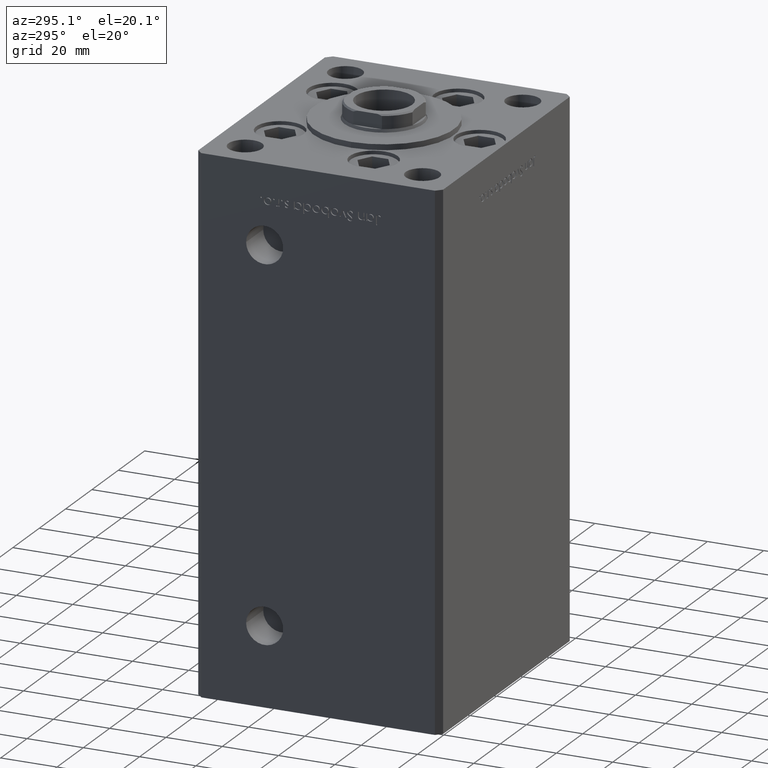
[diagram: clean part render]
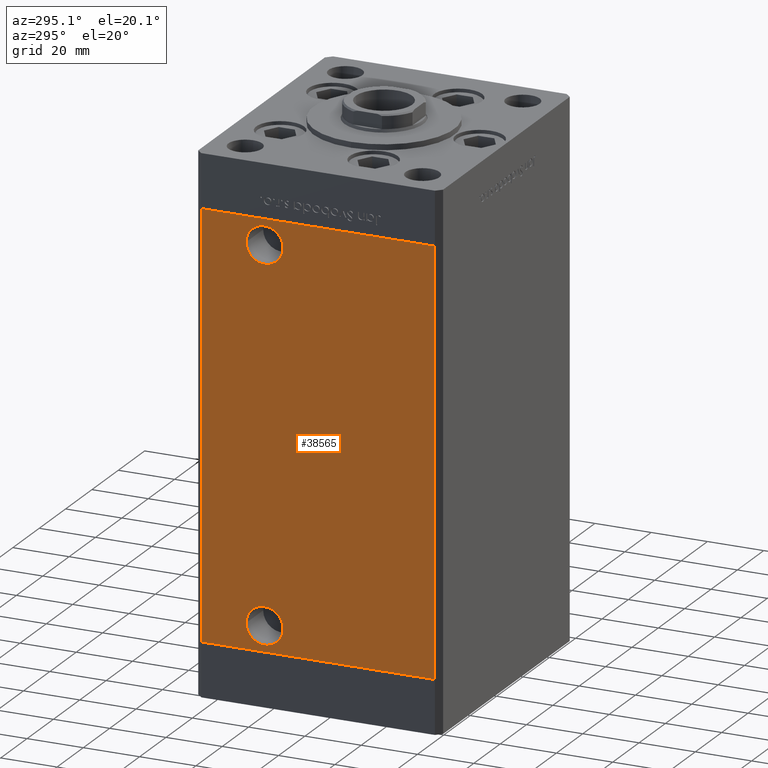
[diagram: same view with one face highlighted and labeled with its STEP entity id]
A machine part, auxiliary view. The second image highlights one B-rep face of the part: STEP entity #38565.
In plain terms, the highlighted planar face has unit normal (1, 0, 0).
Its self-contained STEP definition (entity closure, byte-faithful):
#160 = CARTESIAN_POINT ( 'NONE',  ( -50.00000000000000711, 19.00000000000000000, 139.4999999999999716 ) ) ;
#191 = ORIENTED_EDGE ( 'NONE', *, *, #43063, .T. ) ;
#542 = CARTESIAN_POINT ( 'NONE',  ( -49.99999999999998579, -41.49999999999999289, 0.000000000000000000 ) ) ;
#1026 = ORIENTED_EDGE ( 'NONE', *, *, #49103, .F. ) ;
#1123 = VECTOR ( 'NONE', #45625, 1000.000000000000000 ) ;
#1570 = CARTESIAN_POINT ( 'NONE',  ( -49.99999999999998579, -41.49999999999999289, 148.5000000000000000 ) ) ;
#1701 = EDGE_CURVE ( 'NONE', #38739, #10972, #29627, .T. ) ;
#2229 = CARTESIAN_POINT ( 'NONE',  ( -50.00000000000001421, 41.49999999999999289, 148.5000000000000000 ) ) ;
#2323 = ORIENTED_EDGE ( 'NONE', *, *, #10589, .F. ) ;
#2334 = ORIENTED_EDGE ( 'NONE', *, *, #22067, .F. ) ;
#2774 = AXIS2_PLACEMENT_3D ( 'NONE', #9462, #26512, #30727 ) ;
#3281 = VECTOR ( 'NONE', #8140, 1000.000000000000000 ) ;
#3626 = CIRCLE ( 'NONE', #2774, 6.580000000000002736 ) ;
#4116 = CARTESIAN_POINT ( 'NONE',  ( -50.00000000000000711, 19.00000000000000000, 9.000000000000000000 ) ) ;
#4119 = DIRECTION ( 'NONE',  ( -1.000000000000000000, -2.275047181608927644E-16, 0.000000000000000000 ) ) ;
#4702 = VERTEX_POINT ( 'NONE', #14882 ) ;
#4821 = VERTEX_POINT ( 'NONE', #33929 ) ;
#5276 = CIRCLE ( 'NONE', #42141, 6.580000000000002736 ) ;
#7124 = EDGE_LOOP ( 'NONE', ( #51185, #8216, #2334, #191 ) ) ;
#8045 = VECTOR ( 'NONE', #21300, 1000.000000000000000 ) ;
#8140 = DIRECTION ( 'NONE',  ( -0.000000000000000000, -0.000000000000000000, -1.000000000000000000 ) ) ;
#8216 = ORIENTED_EDGE ( 'NONE', *, *, #33001, .F. ) ;
#9288 = CARTESIAN_POINT ( 'NONE',  ( -50.00000000000001421, 41.49999999999999289, 0.000000000000000000 ) ) ;
#9462 = CARTESIAN_POINT ( 'NONE',  ( -50.00000000000000711, 19.00000000000000000, 9.000000000000000000 ) ) ;
#10528 = VERTEX_POINT ( 'NONE', #2229 ) ;
#10589 = EDGE_CURVE ( 'NONE', #23682, #4821, #48721, .T. ) ;
#10972 = VERTEX_POINT ( 'NONE', #542 ) ;
#11208 = CARTESIAN_POINT ( 'NONE',  ( -50.00000000000000711, 12.41999999999998394, 139.4999999999999716 ) ) ;
#11452 = DIRECTION ( 'NONE',  ( 0.000000000000000000, -1.000000000000000000, 0.000000000000000000 ) ) ;
#14055 = CIRCLE ( 'NONE', #19129, 6.580000000000016058 ) ;
#14882 = CARTESIAN_POINT ( 'NONE',  ( -50.00000000000000711, 25.58000000000000540, 9.000000000000000000 ) ) ;
#15359 = PLANE ( 'NONE',  #40036 ) ;
#17881 = VECTOR ( 'NONE', #50497, 1000.000000000000000 ) ;
#18136 = LINE ( 'NONE', #29702, #8045 ) ;
#19129 = AXIS2_PLACEMENT_3D ( 'NONE', #160, #4119, #31429 ) ;
#19699 = EDGE_CURVE ( 'NONE', #4702, #37444, #5276, .T. ) ;
#20374 = DIRECTION ( 'NONE',  ( -1.000000000000000000, -2.275047181608927644E-16, 0.000000000000000000 ) ) ;
#20969 = CARTESIAN_POINT ( 'NONE',  ( -50.00000000000001421, 41.49999999999999289, 0.000000000000000000 ) ) ;
#21300 = DIRECTION ( 'NONE',  ( -0.000000000000000000, -0.000000000000000000, -1.000000000000000000 ) ) ;
#21348 = EDGE_CURVE ( 'NONE', #37444, #4702, #3626, .T. ) ;
#22067 = EDGE_CURVE ( 'NONE', #10528, #44362, #30575, .T. ) ;
#23682 = VERTEX_POINT ( 'NONE', #11208 ) ;
#24009 = DIRECTION ( 'NONE',  ( 1.000000000000000000, 3.344045254895050480E-16, -0.000000000000000000 ) ) ;
#26512 = DIRECTION ( 'NONE',  ( -1.000000000000000000, -2.275047181608927644E-16, 0.000000000000000000 ) ) ;
#27667 = DIRECTION ( 'NONE',  ( 0.000000000000000000, -1.000000000000000000, 0.000000000000000000 ) ) ;
#28226 = CARTESIAN_POINT ( 'NONE',  ( -50.00000000000001421, 41.49999999999999289, 148.5000000000000000 ) ) ;
#29627 = LINE ( 'NONE', #20969, #1123 ) ;
#29702 = CARTESIAN_POINT ( 'NONE',  ( -49.99999999999998579, -41.49999999999999289, 148.5000000000000000 ) ) ;
#30236 = CARTESIAN_POINT ( 'NONE',  ( -50.00000000000000711, 12.41999999999999638, 9.000000000000000000 ) ) ;
#30296 = AXIS2_PLACEMENT_3D ( 'NONE', #33284, #31357, #27667 ) ;
#30575 = LINE ( 'NONE', #34510, #17881 ) ;
#30727 = DIRECTION ( 'NONE',  ( 0.000000000000000000, -1.000000000000000000, 0.000000000000000000 ) ) ;
#31357 = DIRECTION ( 'NONE',  ( -1.000000000000000000, -2.275047181608927644E-16, 0.000000000000000000 ) ) ;
#31429 = DIRECTION ( 'NONE',  ( 0.000000000000000000, -1.000000000000000000, 0.000000000000000000 ) ) ;
#31915 = FACE_BOUND ( 'NONE', #41442, .T. ) ;
#33001 = EDGE_CURVE ( 'NONE', #44362, #10972, #18136, .T. ) ;
#33284 = CARTESIAN_POINT ( 'NONE',  ( -50.00000000000000711, 19.00000000000000000, 139.4999999999999716 ) ) ;
#33929 = CARTESIAN_POINT ( 'NONE',  ( -50.00000000000000711, 25.58000000000001606, 139.4999999999999716 ) ) ;
#34510 = CARTESIAN_POINT ( 'NONE',  ( -50.00000000000001421, 41.49999999999999289, 148.5000000000000000 ) ) ;
#34816 = EDGE_LOOP ( 'NONE', ( #46978, #45198 ) ) ;
#35338 = FACE_BOUND ( 'NONE', #34816, .T. ) ;
#35980 = CARTESIAN_POINT ( 'NONE',  ( -50.00000000000001421, 41.49999999999999289, 148.5000000000000000 ) ) ;
#36359 = FACE_OUTER_BOUND ( 'NONE', #7124, .T. ) ;
#37444 = VERTEX_POINT ( 'NONE', #30236 ) ;
#38565 = ADVANCED_FACE ( 'NONE', ( #35338, #31915, #36359 ), #15359, .F. ) ;
#38739 = VERTEX_POINT ( 'NONE', #9288 ) ;
#40036 = AXIS2_PLACEMENT_3D ( 'NONE', #28226, #24009, #47126 ) ;
#41442 = EDGE_LOOP ( 'NONE', ( #2323, #1026 ) ) ;
#42141 = AXIS2_PLACEMENT_3D ( 'NONE', #4116, #20374, #11452 ) ;
#43063 = EDGE_CURVE ( 'NONE', #10528, #38739, #44604, .T. ) ;
#44362 = VERTEX_POINT ( 'NONE', #1570 ) ;
#44604 = LINE ( 'NONE', #35980, #3281 ) ;
#45198 = ORIENTED_EDGE ( 'NONE', *, *, #19699, .F. ) ;
#45625 = DIRECTION ( 'NONE',  ( 3.344045254895050973E-16, -1.000000000000000000, 0.000000000000000000 ) ) ;
#46978 = ORIENTED_EDGE ( 'NONE', *, *, #21348, .F. ) ;
#47126 = DIRECTION ( 'NONE',  ( -3.344045254895050480E-16, 1.000000000000000000, 0.000000000000000000 ) ) ;
#48721 = CIRCLE ( 'NONE', #30296, 6.580000000000016058 ) ;
#49103 = EDGE_CURVE ( 'NONE', #4821, #23682, #14055, .T. ) ;
#50497 = DIRECTION ( 'NONE',  ( 3.344045254895050973E-16, -1.000000000000000000, 0.000000000000000000 ) ) ;
#51185 = ORIENTED_EDGE ( 'NONE', *, *, #1701, .T. ) ;